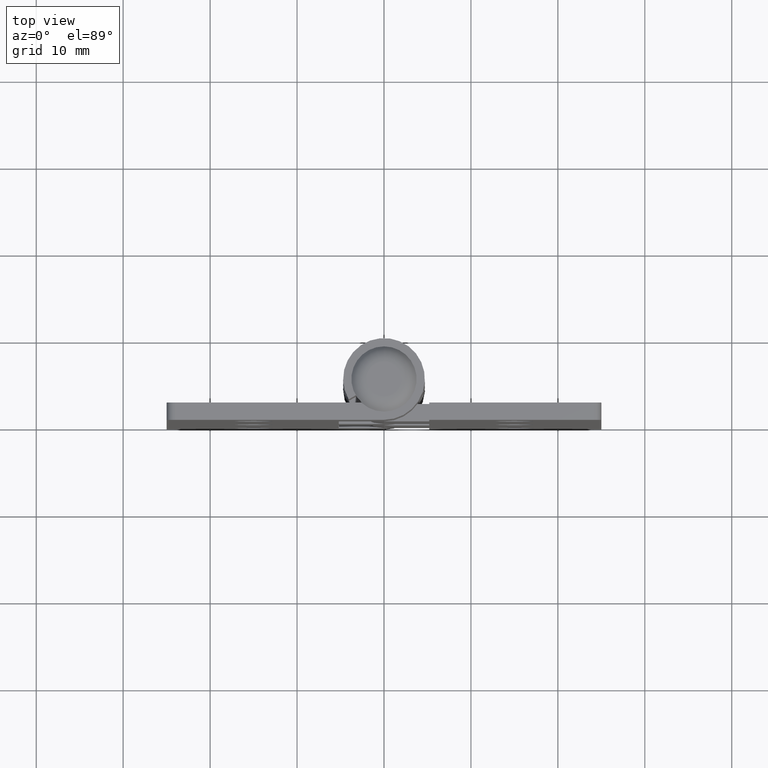
[diagram: clean part render]
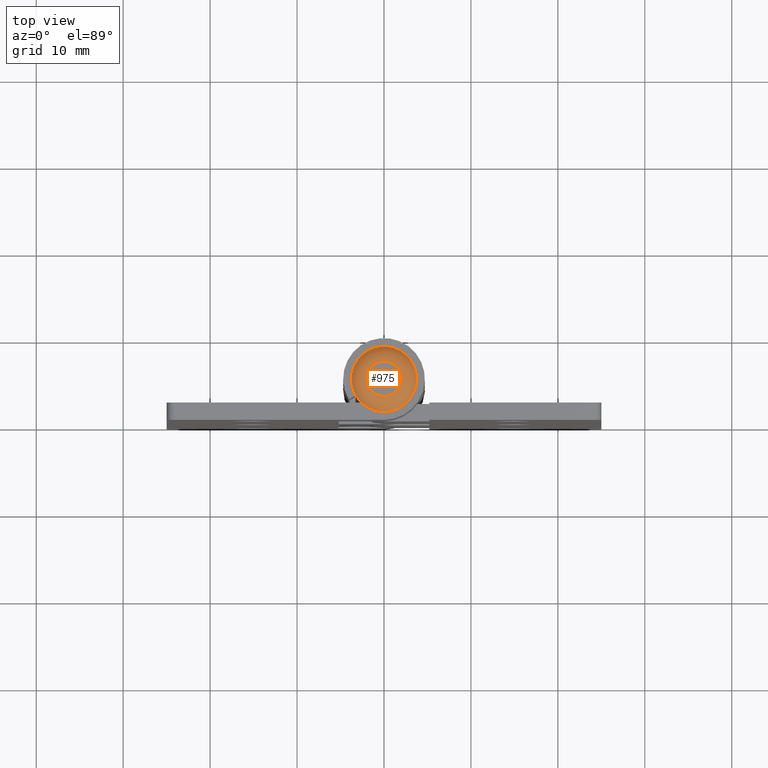
[diagram: same view with one face highlighted and labeled with its STEP entity id]
A machine part, top view. The second image highlights one B-rep face of the part: STEP entity #975.
In plain terms, the highlighted toroidal blend (fillet) surface has major radius 2.0179 mm and minor (blend) radius 2 mm.
Its self-contained STEP definition (entity closure, byte-faithful):
#20=TOROIDAL_SURFACE('',#1058,2.01794919243113,2.);
#41=FACE_BOUND('',#179,.T.);
#113=FACE_OUTER_BOUND('',#178,.T.);
#178=EDGE_LOOP('',(#798));
#179=EDGE_LOOP('',(#799));
#415=CIRCLE('',#1059,2.01794919243113);
#416=CIRCLE('',#1060,3.75000000000001);
#485=VERTEX_POINT('',#1555);
#486=VERTEX_POINT('',#1557);
#599=EDGE_CURVE('',#485,#485,#415,.T.);
#600=EDGE_CURVE('',#486,#486,#416,.T.);
#798=ORIENTED_EDGE('',*,*,#599,.T.);
#799=ORIENTED_EDGE('',*,*,#600,.F.);
#975=ADVANCED_FACE('',(#113,#41),#20,.T.);
#1058=AXIS2_PLACEMENT_3D('',#1554,#1260,#1261);
#1059=AXIS2_PLACEMENT_3D('',#1556,#1262,#1263);
#1060=AXIS2_PLACEMENT_3D('',#1558,#1264,#1265);
#1260=DIRECTION('center_axis',(0.,-3.50147261612549E-16,1.));
#1261=DIRECTION('ref_axis',(-6.12323399573677E-17,1.,0.));
#1262=DIRECTION('center_axis',(0.,3.50147261612549E-16,-1.));
#1263=DIRECTION('ref_axis',(-6.12323399573677E-17,1.,4.12630442625619E-16));
#1264=DIRECTION('center_axis',(0.,3.50147261612549E-16,-1.));
#1265=DIRECTION('ref_axis',(1.,0.,0.));
#1554=CARTESIAN_POINT('Origin',(0.,4.69999999999999,31.5));
#1555=CARTESIAN_POINT('',(-1.23563750967638E-16,2.68205080756886,33.5));
#1556=CARTESIAN_POINT('Origin',(0.,4.69999999999999,33.5));
#1557=CARTESIAN_POINT('',(0.,8.45,32.5));
#1558=CARTESIAN_POINT('Origin',(0.,4.69999999999999,32.5));